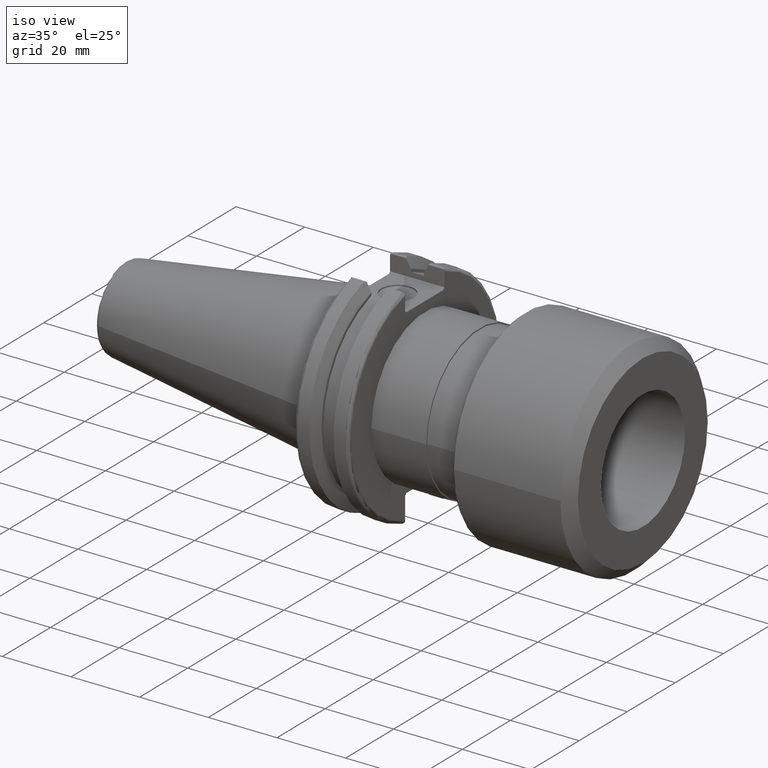
[diagram: clean part render]
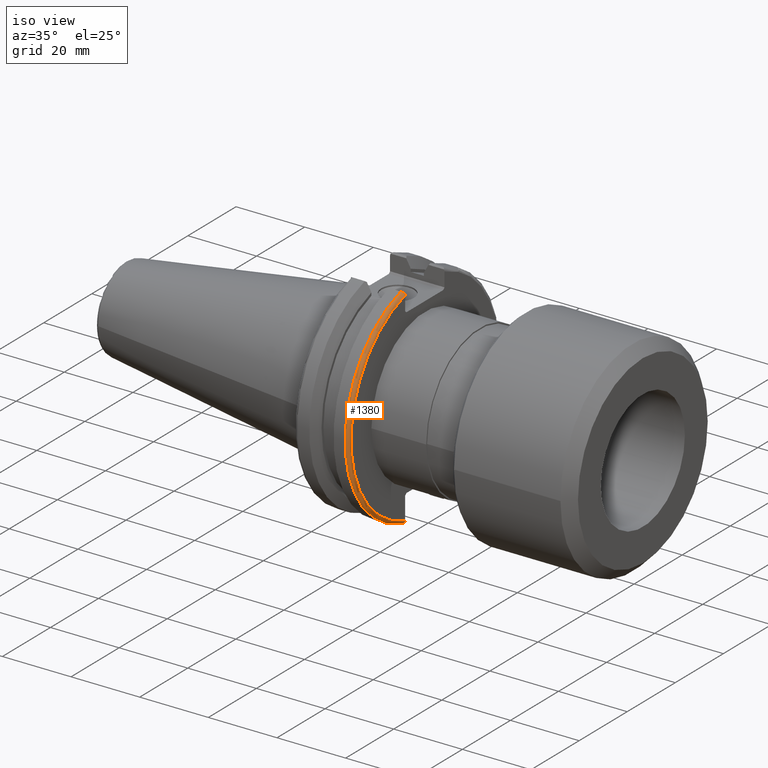
[diagram: same view with one face highlighted and labeled with its STEP entity id]
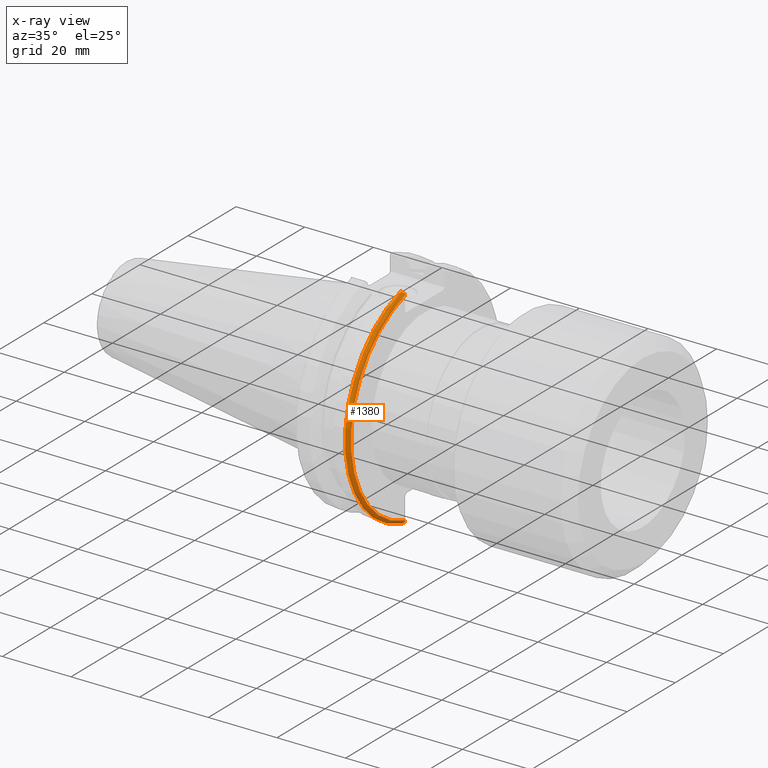
[diagram: x-ray of the same camera — body ghosted, the highlighted face saturated]
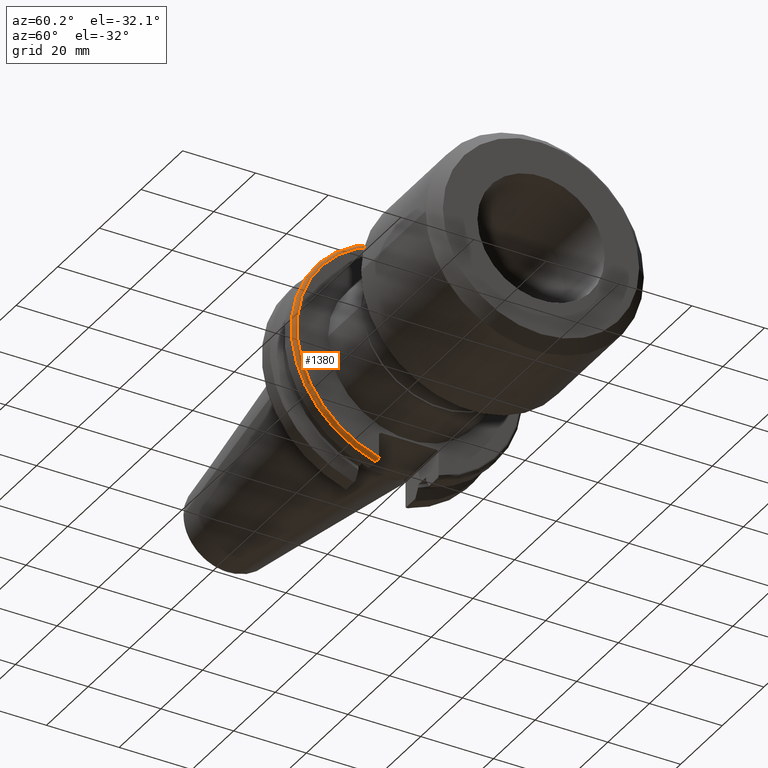
[diagram: same view with one face highlighted and labeled with its STEP entity id]
A machine part, iso view. The second image highlights one B-rep face of the part: STEP entity #1380.
The next image is the same camera in x-ray: the body ghosted, the highlighted face saturated — about 0% of this face is hidden behind the body in this view.
A second angle (auxiliary view) of the same face is appended — the face is thin or edge-on in the first view.
In plain terms, the highlighted toroidal blend (fillet) surface has major radius 30.75 mm and minor (blend) radius 1 mm.
Its self-contained STEP definition (entity closure, byte-faithful):
#269=B_SPLINE_CURVE_WITH_KNOTS('',3,(#2301,#2302,#2303,#2304,#2305,#2306),
 .UNSPECIFIED.,.F.,.F.,(4,2,4),(0.097738363091569,0.112311108149119,0.150804350305566),
 .UNSPECIFIED.);
#270=B_SPLINE_CURVE_WITH_KNOTS('',3,(#2308,#2309,#2310,#2311,#2312,#2313),
 .UNSPECIFIED.,.F.,.F.,(4,2,4),(0.452741154494497,0.491581665024872,0.505824174364156),
 .UNSPECIFIED.);
#271=B_SPLINE_CURVE_WITH_KNOTS('',3,(#2315,#2316,#2317,#2318,#2319,#2320,
#2321,#2322),.UNSPECIFIED.,.F.,.F.,(4,2,2,4),(-0.104180282751877,-0.0729784742461446,
-0.0343524753874984,0.),.UNSPECIFIED.);
#272=B_SPLINE_CURVE_WITH_KNOTS('',3,(#2325,#2326,#2327,#2328,#2329,#2330,
#2331,#2332),.UNSPECIFIED.,.F.,.F.,(4,2,2,4),(0.,0.0343524753874978,0.0729784742461449,
0.104180282751877),.UNSPECIFIED.);
#282=TOROIDAL_SURFACE('',#1588,30.75,1.);
#372=FACE_OUTER_BOUND('',#450,.T.);
#450=EDGE_LOOP('',(#1112,#1113,#1114,#1115,#1116,#1117));
#676=CIRCLE('',#1571,30.75);
#686=CIRCLE('',#1589,31.75);
#745=VERTEX_POINT('',#2179);
#746=VERTEX_POINT('',#2181);
#780=VERTEX_POINT('',#2300);
#781=VERTEX_POINT('',#2307);
#782=VERTEX_POINT('',#2314);
#783=VERTEX_POINT('',#2323);
#865=EDGE_CURVE('',#746,#745,#676,.T.);
#907=EDGE_CURVE('',#780,#746,#269,.T.);
#908=EDGE_CURVE('',#745,#781,#270,.T.);
#909=EDGE_CURVE('',#781,#782,#271,.T.);
#910=EDGE_CURVE('',#782,#783,#686,.T.);
#911=EDGE_CURVE('',#783,#780,#272,.T.);
#1112=ORIENTED_EDGE('',*,*,#907,.T.);
#1113=ORIENTED_EDGE('',*,*,#865,.T.);
#1114=ORIENTED_EDGE('',*,*,#908,.T.);
#1115=ORIENTED_EDGE('',*,*,#909,.T.);
#1116=ORIENTED_EDGE('',*,*,#910,.T.);
#1117=ORIENTED_EDGE('',*,*,#911,.T.);
#1380=ADVANCED_FACE('',(#372),#282,.T.);
#1571=AXIS2_PLACEMENT_3D('',#2182,#1782,#1783);
#1588=AXIS2_PLACEMENT_3D('',#2299,#1840,#1841);
#1589=AXIS2_PLACEMENT_3D('',#2324,#1842,#1843);
#1782=DIRECTION('center_axis',(-1.,0.,0.));
#1783=DIRECTION('ref_axis',(0.,-1.,1.60812264967664E-16));
#1840=DIRECTION('center_axis',(1.,0.,0.));
#1841=DIRECTION('ref_axis',(0.,0.,-1.));
#1842=DIRECTION('center_axis',(1.,0.,0.));
#1843=DIRECTION('ref_axis',(0.,-1.,1.60812264967664E-16));
#2179=CARTESIAN_POINT('',(19.05,-8.19,29.6392712461019));
#2181=CARTESIAN_POINT('',(19.05,-8.19,-29.6392712461019));
#2182=CARTESIAN_POINT('Origin',(19.05,0.,0.));
#2299=CARTESIAN_POINT('Origin',(18.05,0.,0.));
#2300=CARTESIAN_POINT('',(18.9058722749097,-8.19,-30.1755016258903));
#2301=CARTESIAN_POINT('Ctrl Pts',(18.9058722749097,-8.19,-30.1755016258903));
#2302=CARTESIAN_POINT('Ctrl Pts',(18.9324477233044,-8.19,-30.1299319366157));
#2303=CARTESIAN_POINT('Ctrl Pts',(18.9550700364447,-8.19,-30.0829389905409));
#2304=CARTESIAN_POINT('Ctrl Pts',(19.0210043632013,-8.19,-29.9188002007263));
#2305=CARTESIAN_POINT('Ctrl Pts',(19.05,-8.19,-29.76758205329));
#2306=CARTESIAN_POINT('Ctrl Pts',(19.05,-8.19,-29.6392712461019));
#2307=CARTESIAN_POINT('',(18.9058722749097,-8.19,30.1755016258903));
#2308=CARTESIAN_POINT('Ctrl Pts',(19.05,-8.19,29.6392712461019));
#2309=CARTESIAN_POINT('Ctrl Pts',(19.05,-8.19,29.7687396145364));
#2310=CARTESIAN_POINT('Ctrl Pts',(19.020485567083,-8.19,29.9212724384851));
#2311=CARTESIAN_POINT('Ctrl Pts',(18.9539643471756,-8.19,30.0852355256475));
#2312=CARTESIAN_POINT('Ctrl Pts',(18.9318163728133,-8.19,30.131014531546));
#2313=CARTESIAN_POINT('Ctrl Pts',(18.9058722749097,-8.19,30.1755016258903));
#2314=CARTESIAN_POINT('',(18.05,-8.67204822802685,30.5427254764662));
#2315=CARTESIAN_POINT('Ctrl Pts',(18.9058722749097,-8.19,30.1755016258903));
#2316=CARTESIAN_POINT('Ctrl Pts',(18.8574463042989,-8.2703682833078,30.2367261024977));
#2317=CARTESIAN_POINT('Ctrl Pts',(18.7926702662319,-8.34909446036477,30.2966996242308));
#2318=CARTESIAN_POINT('Ctrl Pts',(18.6396724190507,-8.48862804755884,30.4029961692546));
#2319=CARTESIAN_POINT('Ctrl Pts',(18.5184414294771,-8.56482138642532,30.4610401774263));
#2320=CARTESIAN_POINT('Ctrl Pts',(18.2983170433775,-8.6471881193939,30.5237870709558));
#2321=CARTESIAN_POINT('Ctrl Pts',(18.1645082512917,-8.67204822802685,30.5427254764662));
#2322=CARTESIAN_POINT('Ctrl Pts',(18.05,-8.67204822802685,30.5427254764662));
#2323=CARTESIAN_POINT('',(18.05,-8.67204822802686,-30.5427254764662));
#2324=CARTESIAN_POINT('Origin',(18.05,0.,0.));
#2325=CARTESIAN_POINT('Ctrl Pts',(18.05,-8.67204822802685,-30.5427254764662));
#2326=CARTESIAN_POINT('Ctrl Pts',(18.1645082512917,-8.67204822802685,-30.5427254764662));
#2327=CARTESIAN_POINT('Ctrl Pts',(18.2983170433775,-8.6471881193939,-30.5237870709558));
#2328=CARTESIAN_POINT('Ctrl Pts',(18.5184414294771,-8.56482138642532,-30.4610401774263));
#2329=CARTESIAN_POINT('Ctrl Pts',(18.6396724190507,-8.48862804755883,-30.4029961692546));
#2330=CARTESIAN_POINT('Ctrl Pts',(18.7926702662319,-8.34909446036477,-30.2966996242308));
#2331=CARTESIAN_POINT('Ctrl Pts',(18.8574463042989,-8.2703682833078,-30.2367261024977));
#2332=CARTESIAN_POINT('Ctrl Pts',(18.9058722749097,-8.19,-30.1755016258903));